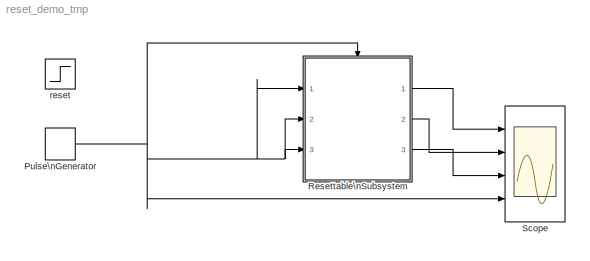
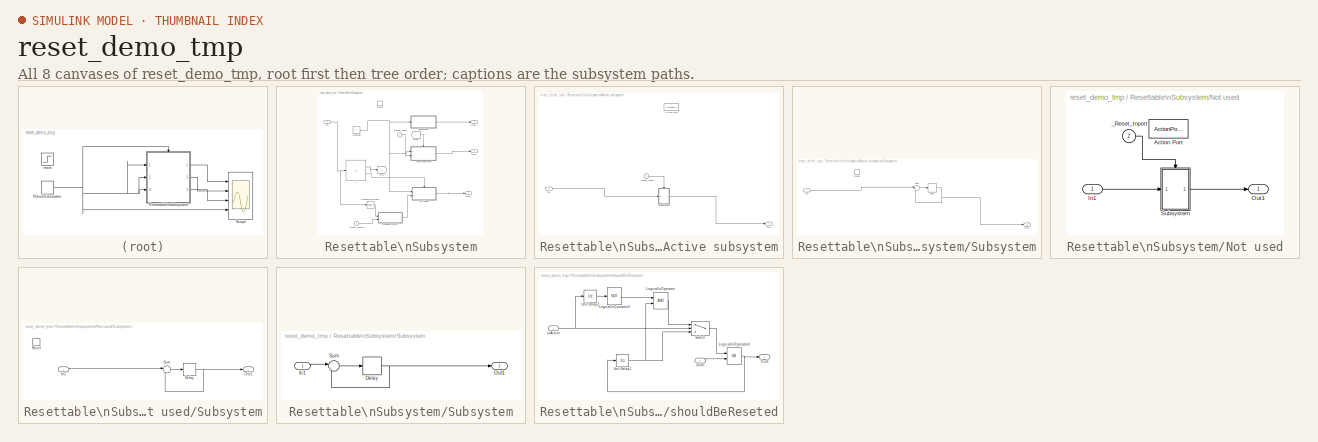
[diagram: thumbnail index - all 8 canvases of the model, root first then tree order]
MODEL reset_demo_tmp
KIND model
BLOCK [DiscretePulseGenerator] Pulse\nGenerator
  Period = 6
  Ports = [0, 1]
  PulseWidth = 3
  SID = 145
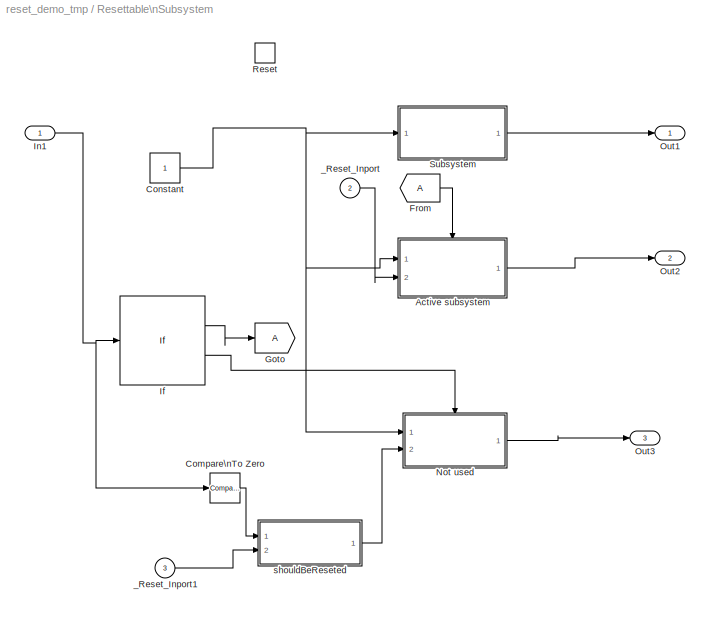
BLOCK [SubSystem] Resettable\nSubsystem
  Ports = [3, 3, 0, 0, 0, 0, 0, 0, 1]
  RequestExecContextInheritance = off
  SID = 2
  TreatAsAtomicUnit = on
  Variant = off
BLOCK [SubSystem] Resettable\nSubsystem/Active subsystem
  Ports = [2, 1, 0, 0, 0, 0, 0, 1]
  RequestExecContextInheritance = off
  SID = 11
  TreatAsAtomicUnit = on
  Variant = off
BLOCK [ActionPort] Resettable\nSubsystem/Active subsystem/Action Port
  ActionType = then
  SID = 13
BLOCK [Inport] Resettable\nSubsystem/Active subsystem/In1
  IconDisplay = Port number
  SID = 12
BLOCK [Outport] Resettable\nSubsystem/Active subsystem/Out1
  IconDisplay = Port number
  SID = 14
BLOCK [SubSystem] Resettable\nSubsystem/Active subsystem/Subsystem
  Ports = [1, 1, 0, 0, 0, 0, 0, 0, 1]
  RequestExecContextInheritance = off
  SID = 131
  Variant = off
BLOCK [Delay] Resettable\nSubsystem/Active subsystem/Subsystem/Delay
  DelayLength = 1
  InputPortMap = u0
  Ports = [1, 1]
  SID = 19
BLOCK [Inport] Resettable\nSubsystem/Active subsystem/Subsystem/In1
  IconDisplay = Port number
  SID = 132
BLOCK [Outport] Resettable\nSubsystem/Active subsystem/Subsystem/Out1
  IconDisplay = Port number
  SID = 133
BLOCK [ResetPort] Resettable\nSubsystem/Active subsystem/Subsystem/Reset
  DisableCoverage = on
  ResetTriggerType = level hold
  SID = 134
BLOCK [Sum] Resettable\nSubsystem/Active subsystem/Subsystem/Sum
  IconShape = round
  InputSameDT = off
  Inputs = |++
  OutDataTypeStr = Inherit: Inherit via internal rule
  Ports = [2, 1]
  SID = 20
  SaturateOnIntegerOverflow = off
BLOCK [Inport] Resettable\nSubsystem/Active subsystem/_Reset_Inport
  IconDisplay = Port number
  Port = 2
  SID = 135
BLOCK [Reference] Resettable\nSubsystem/Compare\nTo Zero  REF=simulink/Logic and Bit\nOperations/Compare\nTo Zero
  OutDataTypeStr = boolean
  Ports = [1, 1]
  SID = 158
  SourceBlock = simulink/Logic and Bit\nOperations/Compare\nTo Zero
  SourceType = Compare To Zero
  ZeroCross = on
  relop = ==
BLOCK [Constant] Resettable\nSubsystem/Constant
  SID = 1
  SampleTime = 1
BLOCK [From] Resettable\nSubsystem/From
  SID = 26
BLOCK [Goto] Resettable\nSubsystem/Goto
  SID = 27
BLOCK [If] Resettable\nSubsystem/If
  Ports = [1, 2]
  SID = 10
BLOCK [Inport] Resettable\nSubsystem/In1
  IconDisplay = Port number
  SID = 3
BLOCK [SubSystem] Resettable\nSubsystem/Not used
  Ports = [2, 1, 0, 0, 0, 0, 0, 1]
  RequestExecContextInheritance = off
  SID = 6
  TreatAsAtomicUnit = on
  Variant = off
BLOCK [ActionPort] Resettable\nSubsystem/Not used/Action Port
  ActionType = else
  SID = 8
BLOCK [Inport] Resettable\nSubsystem/Not used/In1
  IconDisplay = Port number
  SID = 7
BLOCK [Outport] Resettable\nSubsystem/Not used/Out1
  IconDisplay = Port number
  SID = 9
BLOCK [SubSystem] Resettable\nSubsystem/Not used/Subsystem
  Ports = [1, 1, 0, 0, 0, 0, 0, 0, 1]
  RequestExecContextInheritance = off
  SID = 137
  Variant = off
BLOCK [Delay] Resettable\nSubsystem/Not used/Subsystem/Delay
  DelayLength = 1
  InputPortMap = u0
  Ports = [1, 1]
  SID = 143
BLOCK [Inport] Resettable\nSubsystem/Not used/Subsystem/In1
  IconDisplay = Port number
  SID = 138
BLOCK [Outport] Resettable\nSubsystem/Not used/Subsystem/Out1
  IconDisplay = Port number
  SID = 139
BLOCK [ResetPort] Resettable\nSubsystem/Not used/Subsystem/Reset
  DisableCoverage = on
  ResetTriggerType = level hold
  SID = 140
BLOCK [Sum] Resettable\nSubsystem/Not used/Subsystem/Sum
  IconShape = round
  InputSameDT = off
  Inputs = |++
  OutDataTypeStr = Inherit: Inherit via internal rule
  Ports = [2, 1]
  SID = 144
  SaturateOnIntegerOverflow = off
BLOCK [Inport] Resettable\nSubsystem/Not used/_Reset_Inport
  IconDisplay = Port number
  Port = 2
  SID = 141
BLOCK [Outport] Resettable\nSubsystem/Out1
  IconDisplay = Port number
  SID = 5
BLOCK [Outport] Resettable\nSubsystem/Out2
  IconDisplay = Port number
  Port = 2
  SID = 16
BLOCK [Outport] Resettable\nSubsystem/Out3
  IconDisplay = Port number
  Port = 3
  SID = 146
BLOCK [ResetPort] Resettable\nSubsystem/Reset
  DisableCoverage = on
  ResetTriggerType = level hold
  SID = 4
BLOCK [SubSystem] Resettable\nSubsystem/Subsystem
  Ports = [1, 1]
  RequestExecContextInheritance = off
  SID = 23
  Variant = off
BLOCK [Delay] Resettable\nSubsystem/Subsystem/Delay
  DelayLength = 1
  InputPortMap = u0
  Ports = [1, 1]
  SID = 17
BLOCK [Inport] Resettable\nSubsystem/Subsystem/In1
  IconDisplay = Port number
  SID = 24
BLOCK [Outport] Resettable\nSubsystem/Subsystem/Out1
  IconDisplay = Port number
  SID = 25
BLOCK [Sum] Resettable\nSubsystem/Subsystem/Sum
  IconShape = round
  InputSameDT = off
  Inputs = |++
  OutDataTypeStr = Inherit: Inherit via internal rule
  Ports = [2, 1]
  SID = 18
  SaturateOnIntegerOverflow = off
BLOCK [Inport] Resettable\nSubsystem/_Reset_Inport
  IconDisplay = Port number
  Port = 2
  SID = 136
BLOCK [Inport] Resettable\nSubsystem/_Reset_Inport1
  IconDisplay = Port number
  Port = 3
  SID = 142
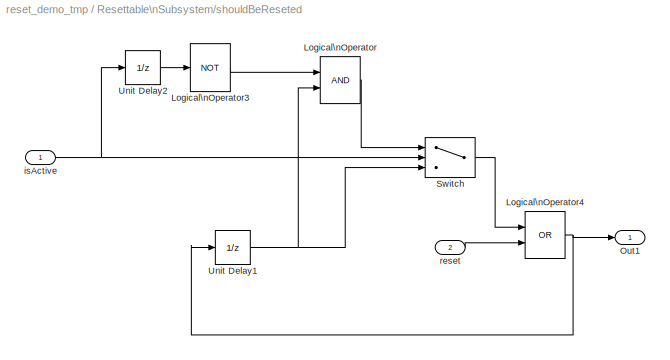
BLOCK [SubSystem] Resettable\nSubsystem/shouldBeReseted
  Ports = [2, 1]
  RequestExecContextInheritance = off
  SID = 159
  Variant = off
BLOCK [Logic] Resettable\nSubsystem/shouldBeReseted/Logical\nOperator
  AllPortsSameDT = off
  OutDataTypeStr = boolean
  Ports = [2, 1]
  SID = 164
BLOCK [Logic] Resettable\nSubsystem/shouldBeReseted/Logical\nOperator3
  AllPortsSameDT = off
  Operator = NOT
  OutDataTypeStr = boolean
  Ports = [1, 1]
  SID = 170
BLOCK [Logic] Resettable\nSubsystem/shouldBeReseted/Logical\nOperator4
  AllPortsSameDT = off
  Operator = OR
  OutDataTypeStr = boolean
  Ports = [2, 1]
  SID = 172
BLOCK [Outport] Resettable\nSubsystem/shouldBeReseted/Out1
  IconDisplay = Port number
  SID = 161
BLOCK [Switch] Resettable\nSubsystem/shouldBeReseted/Switch
  Criteria = u2 ~= 0
  InputSameDT = off
  SID = 162
  SaturateOnIntegerOverflow = off
BLOCK [UnitDelay] Resettable\nSubsystem/shouldBeReseted/Unit Delay1
  InputProcessing = Elements as channels (sample based)
  SID = 166
  SampleTime = -1
BLOCK [UnitDelay] Resettable\nSubsystem/shouldBeReseted/Unit Delay2
  InputProcessing = Elements as channels (sample based)
  SID = 171
  SampleTime = -1
BLOCK [Inport] Resettable\nSubsystem/shouldBeReseted/isActive
  IconDisplay = Port number
  SID = 160
BLOCK [Inport] Resettable\nSubsystem/shouldBeReseted/reset
  IconDisplay = Port number
  Port = 2
  SID = 167
BLOCK [Scope] Scope
  DataFormat = StructureWithTime
  Decimation = 1
  Grid = on
  LimitDataPoints = off
  MaxDataPoints = 5000
  NumInputPorts = 4
  Ports = [4]
  SID = 22
  SampleInput = off
  SampleTime = -1
  SaveName = ScopeData
  SaveToWorkspace = off
  ShowLegends = off
  TickLabels = OneTimeTick
  TimeRange = auto
  YMax = 3.375~1.00000~2.25~1.125
  YMin = -0.375~-1.00000~-0.25~-0.125
  ZoomMode = on
BLOCK [Step] reset
  SID = 21
  SampleTime = .2
  Time = 5
NET Pulse\nGenerator:1 -> Resettable\nSubsystem:1, Resettable\nSubsystem:2, Resettable\nSubsystem:3, Resettable\nSubsystem:Reset, Scope:4
LINE Resettable\nSubsystem/Active subsystem/In1:1 -> Resettable\nSubsystem/Active subsystem/Subsystem:1
NET Resettable\nSubsystem/Active subsystem/Subsystem/Delay:1 -> Resettable\nSubsystem/Active subsystem/Subsystem/Out1:1, Resettable\nSubsystem/Active subsystem/Subsystem/Sum:2
LINE Resettable\nSubsystem/Active subsystem/Subsystem/In1:1 -> Resettable\nSubsystem/Active subsystem/Subsystem/Sum:1
LINE Resettable\nSubsystem/Active subsystem/Subsystem/Sum:1 -> Resettable\nSubsystem/Active subsystem/Subsystem/Delay:1
LINE Resettable\nSubsystem/Active subsystem/Subsystem:1 -> Resettable\nSubsystem/Active subsystem/Out1:1
LINE Resettable\nSubsystem/Active subsystem/_Reset_Inport:1 -> Resettable\nSubsystem/Active subsystem/Subsystem:Reset
LINE Resettable\nSubsystem/Active subsystem:1 -> Resettable\nSubsystem/Out2:1
LINE Resettable\nSubsystem/Compare\nTo Zero:1 -> Resettable\nSubsystem/shouldBeReseted:1
NET Resettable\nSubsystem/Constant:1 -> Resettable\nSubsystem/Active subsystem:1, Resettable\nSubsystem/Not used:1, Resettable\nSubsystem/Subsystem:1
LINE Resettable\nSubsystem/From:1 -> Resettable\nSubsystem/Active subsystem:ifaction
LINE Resettable\nSubsystem/If:1 -> Resettable\nSubsystem/Goto:1
LINE Resettable\nSubsystem/If:2 -> Resettable\nSubsystem/Not used:ifaction
NET Resettable\nSubsystem/In1:1 -> Resettable\nSubsystem/Compare\nTo Zero:1, Resettable\nSubsystem/If:1
LINE Resettable\nSubsystem/Not used/In1:1 -> Resettable\nSubsystem/Not used/Subsystem:1
NET Resettable\nSubsystem/Not used/Subsystem/Delay:1 -> Resettable\nSubsystem/Not used/Subsystem/Out1:1, Resettable\nSubsystem/Not used/Subsystem/Sum:2
LINE Resettable\nSubsystem/Not used/Subsystem/In1:1 -> Resettable\nSubsystem/Not used/Subsystem/Sum:1
LINE Resettable\nSubsystem/Not used/Subsystem/Sum:1 -> Resettable\nSubsystem/Not used/Subsystem/Delay:1
LINE Resettable\nSubsystem/Not used/Subsystem:1 -> Resettable\nSubsystem/Not used/Out1:1
LINE Resettable\nSubsystem/Not used/_Reset_Inport:1 -> Resettable\nSubsystem/Not used/Subsystem:Reset
LINE Resettable\nSubsystem/Not used:1 -> Resettable\nSubsystem/Out3:1
NET Resettable\nSubsystem/Subsystem/Delay:1 -> Resettable\nSubsystem/Subsystem/Out1:1, Resettable\nSubsystem/Subsystem/Sum:2
LINE Resettable\nSubsystem/Subsystem/In1:1 -> Resettable\nSubsystem/Subsystem/Sum:1
LINE Resettable\nSubsystem/Subsystem/Sum:1 -> Resettable\nSubsystem/Subsystem/Delay:1
LINE Resettable\nSubsystem/Subsystem:1 -> Resettable\nSubsystem/Out1:1
LINE Resettable\nSubsystem/_Reset_Inport1:1 -> Resettable\nSubsystem/shouldBeReseted:2
LINE Resettable\nSubsystem/_Reset_Inport:1 -> Resettable\nSubsystem/Active subsystem:2
LINE Resettable\nSubsystem/shouldBeReseted/Logical\nOperator3:1 -> Resettable\nSubsystem/shouldBeReseted/Logical\nOperator:1
NET Resettable\nSubsystem/shouldBeReseted/Logical\nOperator4:1 -> Resettable\nSubsystem/shouldBeReseted/Out1:1, Resettable\nSubsystem/shouldBeReseted/Unit Delay1:1
LINE Resettable\nSubsystem/shouldBeReseted/Logical\nOperator:1 -> Resettable\nSubsystem/shouldBeReseted/Switch:1
LINE Resettable\nSubsystem/shouldBeReseted/Switch:1 -> Resettable\nSubsystem/shouldBeReseted/Logical\nOperator4:1
NET Resettable\nSubsystem/shouldBeReseted/Unit Delay1:1 -> Resettable\nSubsystem/shouldBeReseted/Logical\nOperator:2, Resettable\nSubsystem/shouldBeReseted/Switch:3
LINE Resettable\nSubsystem/shouldBeReseted/Unit Delay2:1 -> Resettable\nSubsystem/shouldBeReseted/Logical\nOperator3:1
NET Resettable\nSubsystem/shouldBeReseted/isActive:1 -> Resettable\nSubsystem/shouldBeReseted/Switch:2, Resettable\nSubsystem/shouldBeReseted/Unit Delay2:1
LINE Resettable\nSubsystem/shouldBeReseted/reset:1 -> Resettable\nSubsystem/shouldBeReseted/Logical\nOperator4:2
LINE Resettable\nSubsystem/shouldBeReseted:1 -> Resettable\nSubsystem/Not used:2
LINE Resettable\nSubsystem:1 -> Scope:1
LINE Resettable\nSubsystem:2 -> Scope:2
LINE Resettable\nSubsystem:3 -> Scope:3
note: NET lines group one-source signal fan-out (src -> all destinations, sorted); 1:1 wires keep LINE
